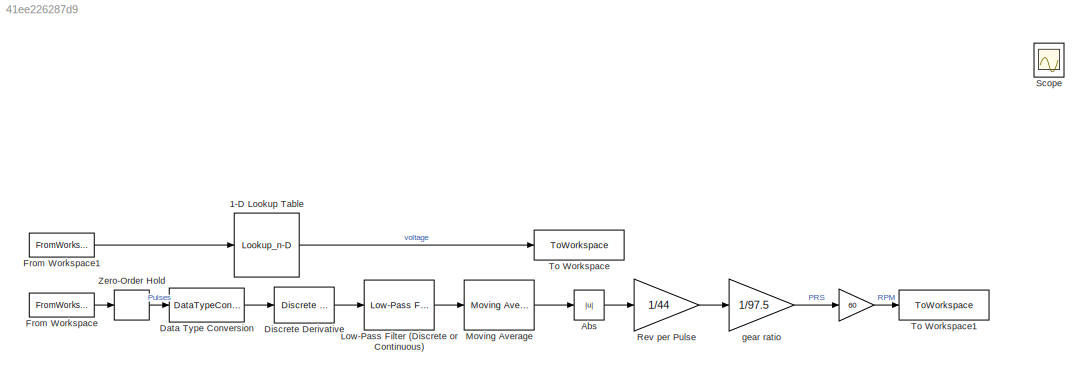
MODEL slx_41ee226287d9
KIND model
CONFIG AbsTol = auto
CONFIG EnableMultiTasking = off
CONFIG FixedStep = auto
CONFIG MaxStep = auto
CONFIG MinStep = auto
CONFIG RelTol = 1e-3
CONFIG SampleTimeConstraint = Unconstrained
CONFIG SolverName = VariableStepAuto
CONFIG StartTime = 0.0
CONFIG StopTime = 350
BLOCK [Gain]  
  Gain = 60
BLOCK [Lookup_n-D] 1-D Lookup Table
  BreakpointsForDimension1 = [0 5 10 15 20 25 30 35 40 45 50 55 60 65 70 75 80 85 90 95 100 105 110 115 120 125 130 135 140 145 150 155 160 165 170 175 180 185 190 195 200 205 210 215 220 225 230 235 240 245 250 255]
  InputPortMap = u0
  InternalRulePriority = Speed
  NumberOfTableDimensions = 1
  RndMeth = Simplest
  Table = [0;0.01;0.029999999999999999;0.050000000000000003;0.10000000000000001;0.13;0.17999999999999999;0.23000000000000001;2.5;3.0800000000000001;3.77;4.54;5.0800000000000001;5.5499999999999998;6.0499999999999998;6.5;6.9699999999999998;7.2300000000000004;7.5099999999999998;7.7199999999999998;7.9000000000000004;8.0899999999999999;8.2799999999999994;8.4000000000000004;8.5600000000000005;8.6500000000000004;8...<+415ch>
BLOCK [Abs] Abs
  SaturateOnIntegerOverflow = off
BLOCK [DataTypeConversion] Data Type Conversion
  OutDataTypeStr = double
  RndMeth = Floor
  SaturateOnIntegerOverflow = off
BLOCK [Reference] Discrete Derivative  REF=simulink/Discrete/Discrete Derivative
  SourceBlock = simulink/Discrete/Discrete Derivative
  SourceType = Discrete Derivative
BLOCK [FromWorkspace] From Workspace
  SampleTime = 0.01
  VariableName = data{3}
BLOCK [FromWorkspace] From Workspace1
  VariableName = data{5}
BLOCK [Reference] Low-Pass Filter (Discrete or Continuous)  REF=eeGeneralControl/Low-Pass Filter
(Discrete or Continuous)
  LibrarySourceBlock = ee_sl_lib/General Control/Low-Pass Filter\n(Discrete or Continuous)
  SourceBlock = eeGeneralControl/Low-Pass Filter\n(Discrete or Continuous)
  SourceType = Low-Pass Filter (Discrete or Continuous)
BLOCK [Reference] Moving Average  REF=eeGeneralControl/Moving Average
  LibrarySourceBlock = ee_sl_lib/General Control/Moving Average
  SourceBlock = eeGeneralControl/Moving Average
  SourceType = Moving Average
BLOCK [Gain] Rev per Pulse
  Gain = 1/44
BLOCK [Scope] Scope
  Floating = off
  NumInputPorts = 3
  ScopeSpecificationString = Simulink.scopes.TimeScopeBlockCfg('CurrentConfiguration', extmgr.ConfigurationSet(extmgr.Configuration('Core','General UI',true),extmgr.Configuration('Core','Source UI',true),extmgr.Configuration('Sources','WiredSimulink',true),extmgr.Configuration('Visuals','Time Domain',true,'SerializedDisplays',{struct('MinYLimReal','-0.625','MaxYLimReal','5.625','YLabelReal','','MinYLimMag','0.00000','MaxYLimM...<+3807ch>
BLOCK [ToWorkspace] To Workspace
  Decimation = 2
  FixptAsFi = on
  MaxDataPoints = inf
  SampleTime = -1
  SaveFormat = Timeseries
  VariableName = Voltage
BLOCK [ToWorkspace] To Workspace1
  Decimation = 2
  FixptAsFi = on
  MaxDataPoints = inf
  SampleTime = -1
  SaveFormat = Timeseries
  VariableName = RPM
BLOCK [ZeroOrderHold] Zero-Order Hold
  SampleTime = -1
BLOCK [Gain] gear ratio
  Gain = 1/97.5
LINE  :1 -> To Workspace1:1
LINE 1-D Lookup Table:1 -> To Workspace:1
LINE Abs:1 -> Rev per Pulse:1
LINE Data Type Conversion:1 -> Discrete Derivative:1
LINE Discrete Derivative:1 -> Low-Pass Filter (Discrete or Continuous):1
LINE From Workspace1:1 -> 1-D Lookup Table:1
LINE From Workspace:1 -> Zero-Order Hold:1
LINE Low-Pass Filter (Discrete or Continuous):1 -> Moving Average:1
LINE Moving Average:1 -> Abs:1
LINE Rev per Pulse:1 -> gear ratio:1
LINE Zero-Order Hold:1 -> Data Type Conversion:1
LINE gear ratio:1 ->  :1
